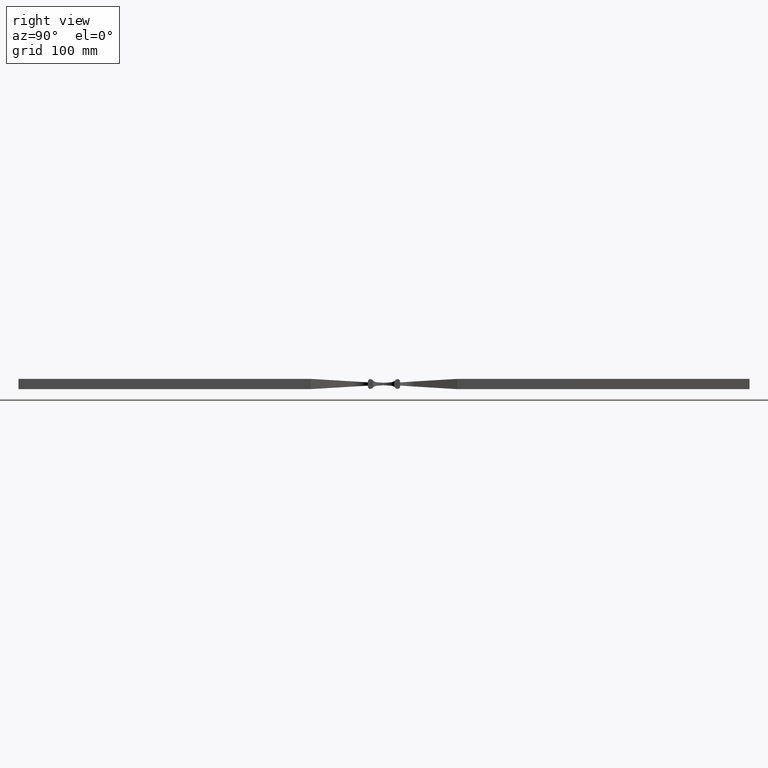
[diagram: clean part render]
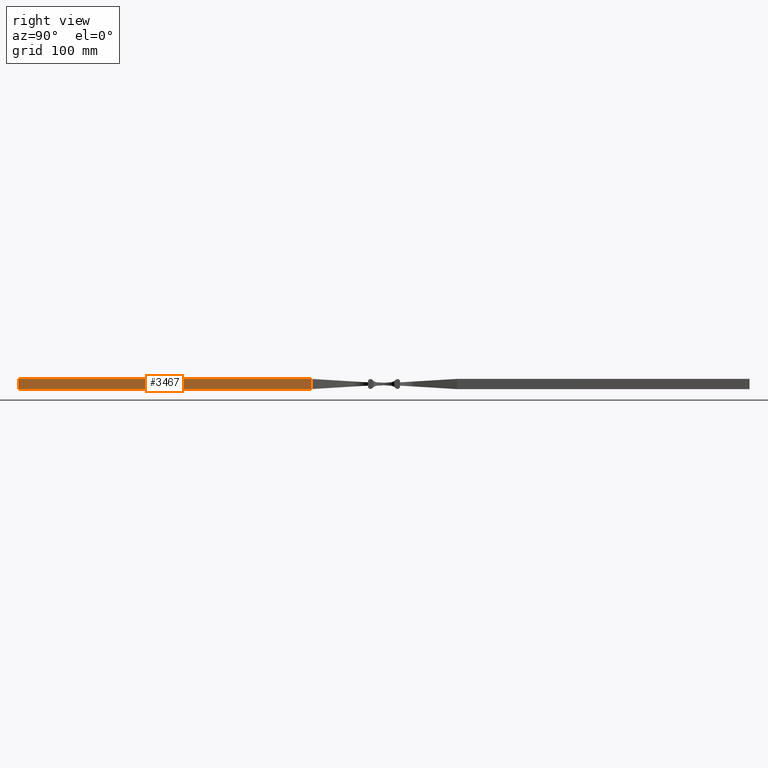
[diagram: same view with one face highlighted and labeled with its STEP entity id]
A machine part, right view. The second image highlights one B-rep face of the part: STEP entity #3467.
In plain terms, the highlighted planar face has unit normal (-1, 0, 0).
Its self-contained STEP definition (entity closure, byte-faithful):
#385 = DIRECTION ( 'NONE',  ( 0.000000000000000000, 0.000000000000000000, -1.000000000000000000 ) ) ;
#902 = ORIENTED_EDGE ( 'NONE', *, *, #4027, .F. ) ;
#922 = DIRECTION ( 'NONE',  ( 4.625929269271485322E-15, 1.000000000000000000, -0.000000000000000000 ) ) ;
#1096 = EDGE_CURVE ( 'NONE', #10101, #7413, #9860, .T. ) ;
#1230 = DIRECTION ( 'NONE',  ( -4.625929269271485322E-15, -1.000000000000000000, 0.000000000000000000 ) ) ;
#1309 = DIRECTION ( 'NONE',  ( -1.000000000000000000, 4.625929269271485322E-15, 0.000000000000000000 ) ) ;
#1595 = AXIS2_PLACEMENT_3D ( 'NONE', #8639, #1309, #1230 ) ;
#2089 = CARTESIAN_POINT ( 'NONE',  ( 7.000000000000000888, -500.0000000000000000, 6.999999999999999112 ) ) ;
#2110 = CARTESIAN_POINT ( 'NONE',  ( 6.999999999998149924, -500.0000000000000000, -6.999999999999999112 ) ) ;
#2288 = LINE ( 'NONE', #2289, #4912 ) ;
#2289 = CARTESIAN_POINT ( 'NONE',  ( 6.999999999998149924, -500.0000000000000000, -6.999999999999999112 ) ) ;
#2358 = ORIENTED_EDGE ( 'NONE', *, *, #10916, .T. ) ;
#2450 = VECTOR ( 'NONE', #10319, 1000.000000000000000 ) ;
#2792 = EDGE_LOOP ( 'NONE', ( #4275, #7648, #2358, #902 ) ) ;
#3419 = VERTEX_POINT ( 'NONE', #2110 ) ;
#3467 = ADVANCED_FACE ( 'NONE', ( #4218 ), #9668, .F. ) ;
#4027 = EDGE_CURVE ( 'NONE', #7413, #6981, #4939, .T. ) ;
#4218 = FACE_OUTER_BOUND ( 'NONE', #2792, .T. ) ;
#4275 = ORIENTED_EDGE ( 'NONE', *, *, #1096, .F. ) ;
#4331 = CARTESIAN_POINT ( 'NONE',  ( 7.000000000000000888, -100.0000000000000284, -6.999999999999999112 ) ) ;
#4359 = LINE ( 'NONE', #10350, #2450 ) ;
#4412 = VECTOR ( 'NONE', #922, 1000.000000000000000 ) ;
#4566 = CARTESIAN_POINT ( 'NONE',  ( 6.999999999995745625, -1019.798989873223377, 6.999999999999999112 ) ) ;
#4912 = VECTOR ( 'NONE', #8735, 1000.000000000000000 ) ;
#4939 = LINE ( 'NONE', #8658, #6225 ) ;
#6225 = VECTOR ( 'NONE', #385, 1000.000000000000000 ) ;
#6981 = VERTEX_POINT ( 'NONE', #4331 ) ;
#7235 = CARTESIAN_POINT ( 'NONE',  ( 7.000000000000000888, -100.0000000000000284, 6.999999999999999112 ) ) ;
#7413 = VERTEX_POINT ( 'NONE', #7235 ) ;
#7648 = ORIENTED_EDGE ( 'NONE', *, *, #10133, .T. ) ;
#8639 = CARTESIAN_POINT ( 'NONE',  ( 6.999999999995745625, -1019.798989873223377, -6.999999999999999112 ) ) ;
#8658 = CARTESIAN_POINT ( 'NONE',  ( 7.000000000000000888, -100.0000000000000000, 7.000000000000000000 ) ) ;
#8735 = DIRECTION ( 'NONE',  ( 0.000000000000000000, 0.000000000000000000, -1.000000000000000000 ) ) ;
#9668 = PLANE ( 'NONE',  #1595 ) ;
#9860 = LINE ( 'NONE', #4566, #4412 ) ;
#10101 = VERTEX_POINT ( 'NONE', #2089 ) ;
#10133 = EDGE_CURVE ( 'NONE', #10101, #3419, #2288, .T. ) ;
#10319 = DIRECTION ( 'NONE',  ( 4.625929269271485322E-15, 1.000000000000000000, -0.000000000000000000 ) ) ;
#10350 = CARTESIAN_POINT ( 'NONE',  ( 6.999999999995745625, -1019.798989873223377, -6.999999999999999112 ) ) ;
#10916 = EDGE_CURVE ( 'NONE', #3419, #6981, #4359, .T. ) ;